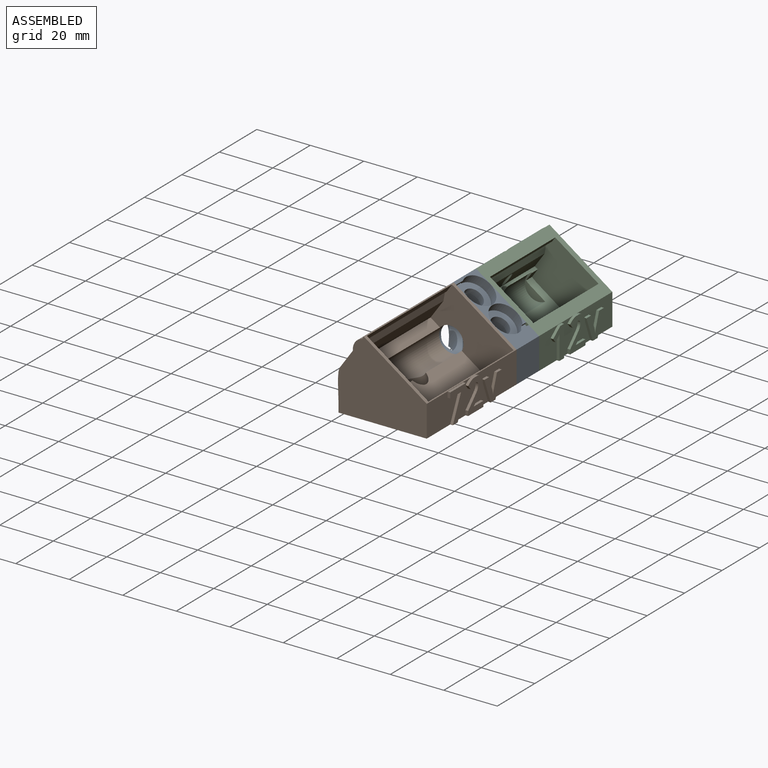
[diagram: assembled view]
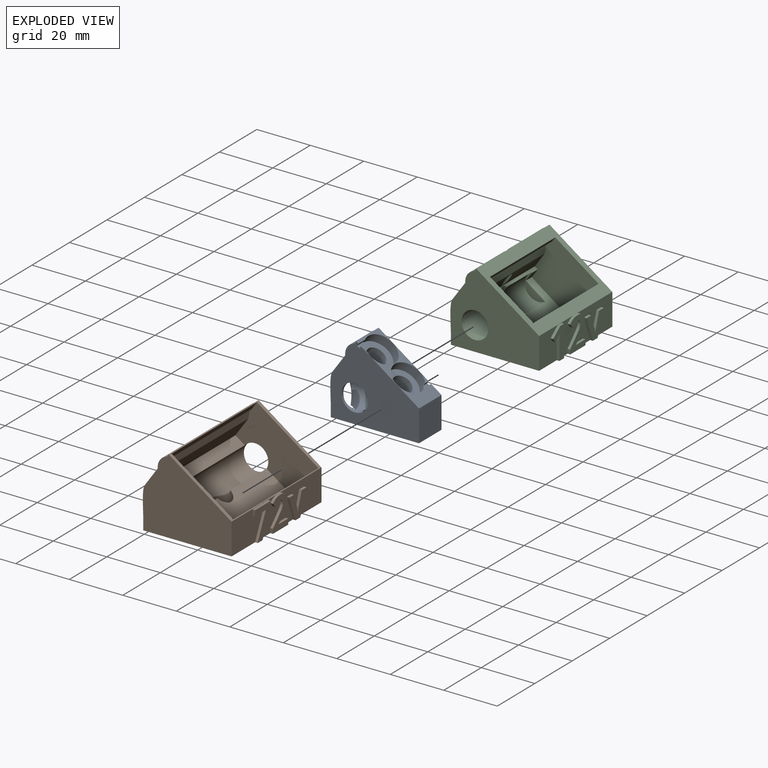
[diagram: exploded view]
GUIDED TOUR — MATED ASSEMBLY (Onshape document 5c7bf9b9e950bf42ef3f9977, AutoMate assembly 5c7bf9b9e950bf42ef3f9977_c45d6a06aa66dc18be972991_92470827dc34dc3ffc66e42c_default)

This assembly has 3 components, labeled P0..P2 below (a component is one placed occurrence of a part; the same part can appear more than once), held together by 2 mates. A mate is a constraint between two components; its type names the relative motion it leaves free:
  FASTENED — locks the two components together rigidly (no relative motion).
Axis/direction vectors are unit vectors and 'through' points are millimeter coordinates, both in the assembly's world frame.

MATES
  1. FASTENED "Fastened 2": P1 <-> P0, direction (0.000, 1.000, 0.000) through (-30.83, -8.54, 11.72) mm
  2. FASTENED "Fastened 1": P2 <-> P0, direction (0.000, -1.000, 0.000) through (-30.83, 3.46, 11.72) mm

ASSEMBLY ORDER
  1. P2 — the base component [order verified]
  2. P0 [order verified]
  3. P1 [order verified]
Order-tag legend:
  [order verified] — this step's position reverses a verified removal order: the component was checked to insert without passing through the ones already placed.

Of the 3 components, 2 carry the full construction recipe — the FeatureScript program that regenerates the part's solid from scratch; the rest are supplied as boundary geometry only.
Each toured component is shown spotlighted twice — in the assembled view, then in the exploded view, where a leader line traces a displaced component back to its assembled socket (saturated green if recipe-attached, orange if geometry-only; every other component desaturated gray) — followed by its recipe or geometry summary and the mates that hold it.
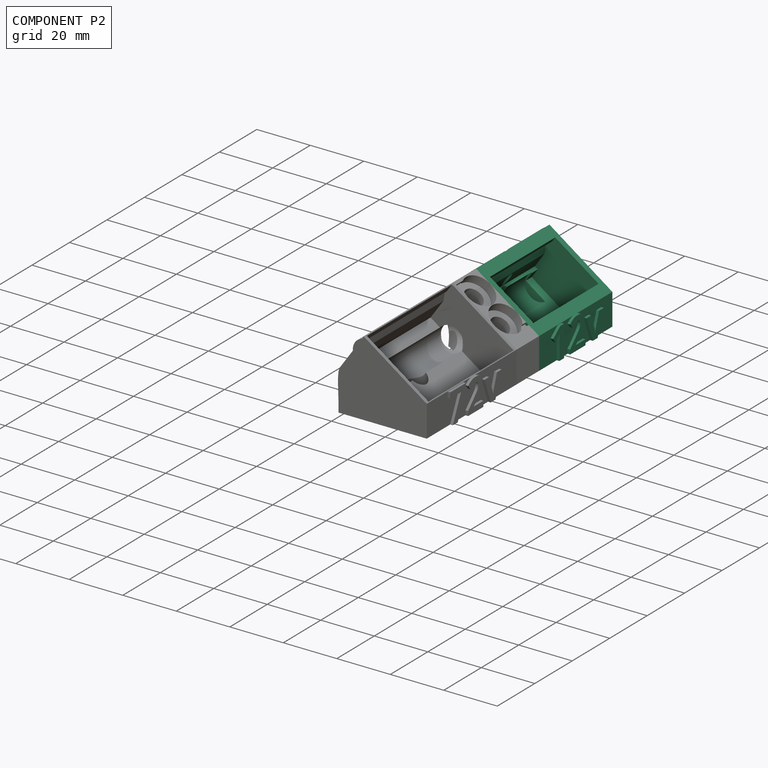
[diagram: component P2 — assembled]
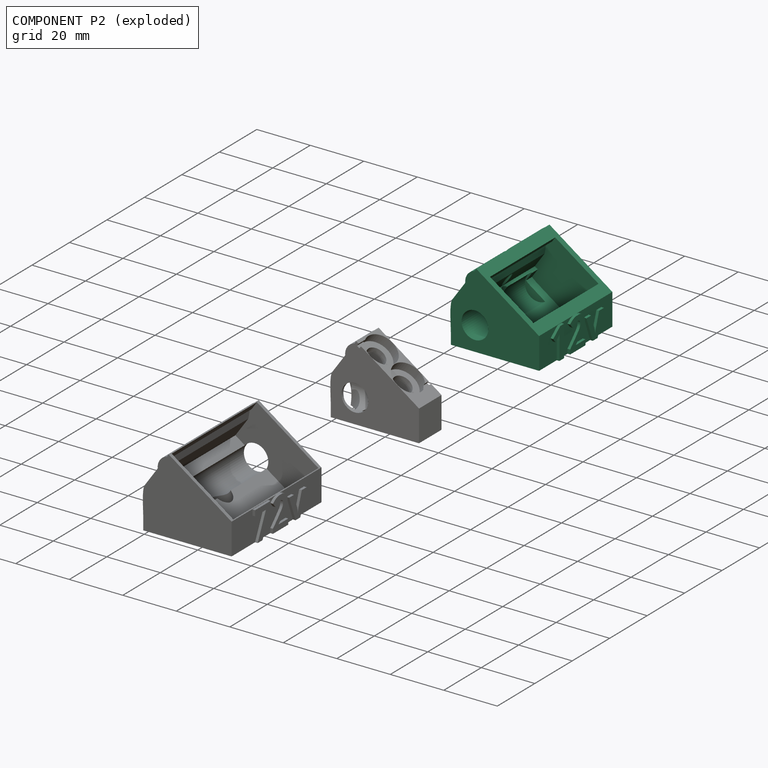
[diagram: component P2 — exploded]
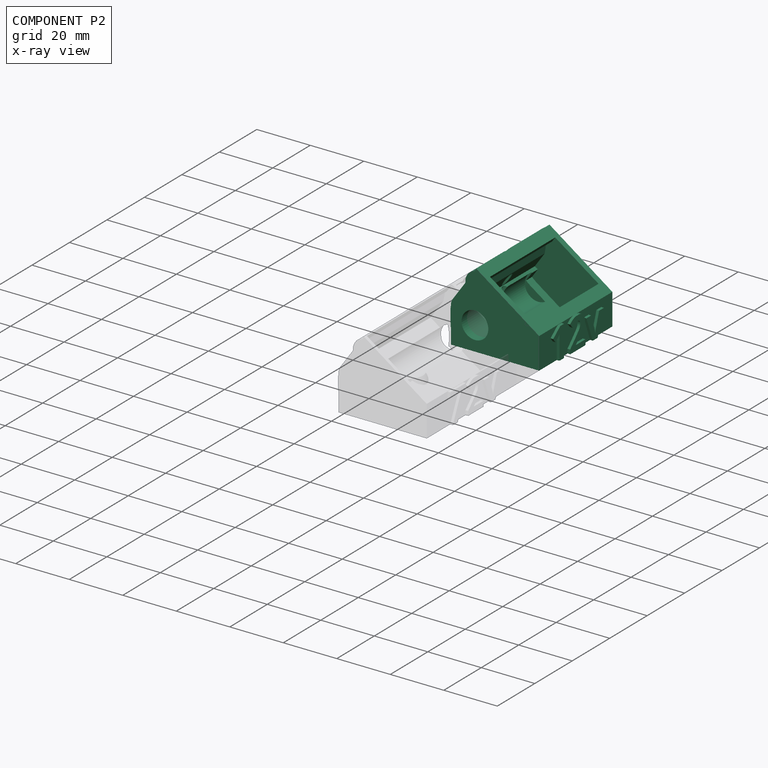
[diagram: component P2 — x-ray view]
COMPONENT P2 — recipe-attached (CADFS 00945284, mesh-verified: the recipe's output STEP matches this component's geometry to below the mesh-comparison resolution (tessellation chordal tolerance ~0.0886 mm)).
Held by: FASTENED mate "Fastened 1" to P0.
Construction recipe (FeatureScript — the CAD program that rebuilds this solid; sketch coordinates are in the units given by the * unit suffixes, e.g. mm):

FeatureScript 1511;
import(path : "onshape/std/geometry.fs", version : "1511.0");
import(path : "onshape/std/common.fs", version : "1511.0");
const mm = millimeter;
const VERTEX = EntityType.VERTEX;
const EDGE = EntityType.EDGE;
const FACE = EntityType.FACE;
const BODY = EntityType.BODY;
function v(x, y){return vector(x, y);}
function OD(order){return orderDisambiguation(order);}
function OSD(set){return originalSetDisambiguation(set);}
function TD(topology){return topologyDisambiguation(topology);}
function TDD(query){return trueDependencyDisambiguation(query);}
function sQuery(a, b, c) {return sketchEntityQuery(a, b, c);}

annotation { "Feature Type Name" : "Feature", "Feature Type Description" : "" }
export const myFeature = defineFeature(function(context is Context, id is Id, definition is map)
    precondition{}
    {
        {
            var Q0;
            Q0=qCreatedBy(makeId("Front.planeOp"),FACE);
            var sketch = newSketch(context, id + "F0", { "sketchPlane" : qUnion([Q0])});
            skLineSegment(sketch, "E0.bottom", {"start": v(0, 0) * mm, "end": v(-33, 0) * mm});
            skLineSegment(sketch, "E0.top", {"start": v(0, 4) * mm, "end": v(-33, 4) * mm});
            skLineSegment(sketch, "E0.left", {"start": v(0, 0) * mm, "end": v(0, 4) * mm});
            skLineSegment(sketch, "E0.right", {"start": v(-33, 0) * mm, "end": v(-33, 4) * mm});
            skLineSegment(sketch, "E1", {"start": v(-30.88, 15.06) * mm, "end": v(-9.83, 0.32) * mm, "construction": true});
            skLineSegment(sketch, "E2", {"start": v(-9.83, 0.32) * mm, "end": v(-1.23, 12.6) * mm, "construction": true});
            skLineSegment(sketch, "E3", {"start": v(-1.23, 12.6) * mm, "end": v(0, 11.74) * mm, "construction": true});
            skLineSegment(sketch, "E4", {"start": v(-22.28, 27.35) * mm, "end": v(-30.88, 15.06) * mm, "construction": true});
            skLineSegment(sketch, "E5", {"start": v(0, 4) * mm, "end": v(0, 11.74) * mm});
            skLineSegment(sketch, "E6", {"start": v(-32.4, 15.5) * mm, "end": v(-15.96, 4) * mm});
            skLineSegment(sketch, "E7", {"start": v(0, 7.87) * mm, "end": v(13.32, 7.87) * mm});
            skLineSegment(sketch, "E8", {"start": v(13.32, 7.87) * mm, "end": v(13.32, 0) * mm});
            skLineSegment(sketch, "E9", {"start": v(13.32, 0) * mm, "end": v(0, 0) * mm});
            skLineSegment(sketch, "E10", {"start": v(21.82, 30.5) * mm, "end": v(-34.66, 30.5) * mm, "construction": true});
            skLineSegment(sketch, "E11", {"start": v(-22.28, 27.35) * mm, "end": v(-23.5, 28.2) * mm, "construction": true});
            skLineSegment(sketch, "E12", {"start": v(-23.5, 28.2) * mm, "end": v(-21.9, 30.5) * mm, "construction": true});
            skLineSegment(sketch, "E13", {"start": v(-21.9, 30.5) * mm, "end": v(1.6, 14.04) * mm, "construction": true});
            skLineSegment(sketch, "E14", {"start": v(0, 11.74) * mm, "end": v(1.6, 14.04) * mm, "construction": true});
            skLineSegment(sketch, "E15", {"start": v(-29.2, 13.88) * mm, "end": v(-31.73, 10.28) * mm, "construction": true});
            skLineSegment(sketch, "E16", {"start": v(-31.73, 10.28) * mm, "end": v(-14.04, -2.11) * mm, "construction": true});
            skLineSegment(sketch, "E17", {"start": v(-14.04, -2.11) * mm, "end": v(-11.51, 1.5) * mm, "construction": true});
            skLineSegment(sketch, "E18", {"start": v(-22.88, 4.08) * mm, "end": v(-20.36, 7.69) * mm, "construction": true});
            skLineSegment(sketch, "E19", {"start": v(0, 11.74) * mm, "end": v(-23.5, 28.2) * mm});
            skLineSegment(sketch, "E20", {"start": v(-23.5, 28.2) * mm, "end": v(-32.4, 15.5) * mm});
            skLineSegment(sketch, "E21", {"start": v(-1.1, 12.52) * mm, "end": v(-9.87, 0) * mm});
            skLineSegment(sketch, "E22", {"start": v(-22.4, 27.43) * mm, "end": v(-31.3, 14.74) * mm});
            skFitSpline(sketch, "E23", {"points": [v(-32.4, 15.5) * mm, v(-33, 4) * mm], "startDerivative": vector(-3.84, -5.87) * mm, "endDerivative": vector(0, -11.95) * mm});
            skLineSegment(sketch, "E24", {"start": v(-15.96, 4) * mm, "end": v(-10.25, 0) * mm});
            skLineSegment(sketch, "E25", {"start": v(-23.03, 26.54) * mm, "end": v(-25.92, 24.77) * mm});
            skLineSegment(sketch, "E26", {"start": v(-25.92, 24.77) * mm, "end": v(-26.47, 21.62) * mm});
            skLineSegment(sketch, "E27.MirrorCS", {"start": v(-1.73, 11.62) * mm, "end": v(-2.4, 8.3) * mm});
            skLineSegment(sketch, "E28.MirrorCS", {"start": v(-2.4, 8.3) * mm, "end": v(-5.17, 6.7) * mm});
            skArc(sketch, "E29", {"start": v(-24.18, 27.25) * mm, "mid": v(-26.8, 25.44) * mm, "end": v(-27.6, 22.35) * mm});
            skLineSegment(sketch, "E30", {"start": v(-23.25, 28.02) * mm, "end": v(-25.23, 25.19) * mm});
            skLineSegment(sketch, "E31.MirrorCS", {"start": v(-0.26, 11.93) * mm, "end": v(-2.25, 9.1) * mm});
            skLineSegment(sketch, "E32", {"start": v(-19.45, 25.37) * mm, "end": v(-27.48, 13.9) * mm});
            skLineSegment(sketch, "E33", {"start": v(-19.85, 25.64) * mm, "end": v(-21, 24) * mm});
            skLineSegment(sketch, "E34", {"start": v(-21, 24) * mm, "end": v(-23.26, 22.54) * mm});
            skLineSegment(sketch, "E35", {"start": v(-23.26, 22.54) * mm, "end": v(-23.77, 19.2) * mm});
            skLineSegment(sketch, "E36", {"start": v(-23.26, 22.54) * mm, "end": v(-22.04, 21.68) * mm});
            skLineSegment(sketch, "E37.MirrorCS", {"start": v(-4.05, 14.58) * mm, "end": v(-12.08, 3.12) * mm});
            skLineSegment(sketch, "E38.MirrorCS", {"start": v(-5.4, 10.04) * mm, "end": v(-8.37, 8.42) * mm});
            skLineSegment(sketch, "E39.MirrorCS", {"start": v(-4.8, 12.67) * mm, "end": v(-5.4, 10.04) * mm});
            skLineSegment(sketch, "E40.MirrorCS", {"start": v(-3.66, 14.3) * mm, "end": v(-4.8, 12.67) * mm});
            skLineSegment(sketch, "E41", {"start": v(-27.48, 13.9) * mm, "end": v(-12.08, 3.12) * mm});
            skLineSegment(sketch, "E42", {"start": v(-26.93, 8.63) * mm, "end": v(-18.27, 2.57) * mm});
            skLineSegment(sketch, "E43", {"start": v(-18.27, 2.57) * mm, "end": v(-15.95, 0.94) * mm});
            skLineSegment(sketch, "E44", {"start": v(-15.95, 0.94) * mm, "end": v(-13.66, 4.22) * mm});
            skLineSegment(sketch, "E45", {"start": v(-26.36, 13.11) * mm, "end": v(-28.56, 9.97) * mm});
            skLineSegment(sketch, "E46", {"start": v(-28.56, 9.97) * mm, "end": v(-26.93, 8.63) * mm});
            skSolve(sketch);
        }
        {
            var Q0;
            {var subQ6=sQuery(id+"F0.wireOp",EDGE,"E33");Q0=makeQuery(id+"F0.imprint","IMPRINT",FACE,{"disambiguationData":[TD([[makeQuery(id+"F0.imprint","IMPRINT",EDGE,{"derivedFrom":subQ6}),-1.0]])]});}
            var Q1;
            {var subQ3=sQuery(id+"F0.wireOp",EDGE,"E37.MirrorCS");var subQ4=sQuery(id+"F0.wireOp",EDGE,"E0.top");var subQ5=makeQuery(id+"F0.imprint","INTERSECT",VERTEX,{"derivedFrom":[subQ4,subQ3]});Q1=makeQuery(id+"F0.imprint","IMPRINT",FACE,{"disambiguationData":[TD([[makeQuery(id+"F0.imprint","IMPRINT",EDGE,{"disambiguationData":[TD([[subQ5,-1.0]])],"derivedFrom":subQ4}),-1.0]])]});}
            var Q2;
            {var subQ0=sQuery(id+"F0.wireOp",EDGE,"E38.MirrorCS");Q2=makeQuery(id+"F0.imprint","IMPRINT",FACE,{"disambiguationData":[TD([[makeQuery(id+"F0.imprint","IMPRINT",EDGE,{"derivedFrom":subQ0}),-1.0]])]});}
            var Q3;
            {var subQ10=sQuery(id+"F0.wireOp",EDGE,"E38.MirrorCS");Q3=makeQuery(id+"F0.imprint","IMPRINT",FACE,{"disambiguationData":[TD([[makeQuery(id+"F0.imprint","IMPRINT",EDGE,{"derivedFrom":subQ10}),1.0]])]});}
            var Q4;
            {var subQ7=sQuery(id+"F0.wireOp",EDGE,"E24");Q4=makeQuery(id+"F0.imprint","IMPRINT",FACE,{"disambiguationData":[TD([[makeQuery(id+"F0.imprint","IMPRINT",EDGE,{"derivedFrom":subQ7}),1.0]])]});}
            var Q5;
            {var subQ0=sQuery(id+"F0.wireOp",EDGE,"E37.MirrorCS");var subQ1=sQuery(id+"F0.wireOp",EDGE,"E0.top");var subQ2=makeQuery(id+"F0.imprint","INTERSECT",VERTEX,{"derivedFrom":[subQ1,subQ0]});Q5=makeQuery(id+"F0.imprint","IMPRINT",FACE,{"disambiguationData":[TD([[makeQuery(id+"F0.imprint","IMPRINT",EDGE,{"disambiguationData":[TD([[subQ2,-1.0]])],"derivedFrom":subQ1}),1.0]])]});}
            var Q6;
            {var subQ5=sQuery(id+"F0.wireOp",EDGE,"E28.MirrorCS");Q6=makeQuery(id+"F0.imprint","IMPRINT",FACE,{"disambiguationData":[TD([[makeQuery(id+"F0.imprint","IMPRINT",EDGE,{"derivedFrom":subQ5}),1.0]])]});}
            var Q7;
            {var subQ3=sQuery(id+"F0.wireOp",EDGE,"E28.MirrorCS");Q7=makeQuery(id+"F0.imprint","IMPRINT",FACE,{"disambiguationData":[TD([[makeQuery(id+"F0.imprint","IMPRINT",EDGE,{"derivedFrom":subQ3}),-1.0]])]});}
            var Q8;
            {var subQ3=sQuery(id+"F0.wireOp",EDGE,"E31.MirrorCS");Q8=makeQuery(id+"F0.imprint","IMPRINT",FACE,{"disambiguationData":[TD([[makeQuery(id+"F0.imprint","IMPRINT",EDGE,{"derivedFrom":subQ3}),-1.0]])]});}
            var Q9;
            {var subQ0=sQuery(id+"F0.wireOp",EDGE,"E0.left");Q9=makeQuery(id+"F0.imprint","IMPRINT",FACE,{"disambiguationData":[TD([[makeQuery(id+"F0.imprint","IMPRINT",EDGE,{"derivedFrom":subQ0}),1.0]])]});}
            var Q10;
            {var subQ0=sQuery(id+"F0.wireOp",EDGE,"E0.right");Q10=makeQuery(id+"F0.imprint","IMPRINT",FACE,{"disambiguationData":[TD([[makeQuery(id+"F0.imprint","IMPRINT",EDGE,{"derivedFrom":subQ0}),-1.0]])]});}
            var Q11;
            {var subQ0=sQuery(id+"F0.wireOp",EDGE,"E23");Q11=makeQuery(id+"F0.imprint","IMPRINT",FACE,{"disambiguationData":[TD([[makeQuery(id+"F0.imprint","IMPRINT",EDGE,{"derivedFrom":subQ0}),1.0]])]});}
            var Q12;
            {var subQ3=sQuery(id+"F0.wireOp",EDGE,"E26");Q12=makeQuery(id+"F0.imprint","IMPRINT",FACE,{"disambiguationData":[TD([[makeQuery(id+"F0.imprint","IMPRINT",EDGE,{"derivedFrom":subQ3}),-1.0]])]});}
            var Q13;
            {var subQ0=sQuery(id+"F0.wireOp",EDGE,"E35");Q13=makeQuery(id+"F0.imprint","IMPRINT",FACE,{"disambiguationData":[TD([[makeQuery(id+"F0.imprint","IMPRINT",EDGE,{"derivedFrom":subQ0}),1.0]])]});}
            var Q14;
            {var subQ0=sQuery(id+"F0.wireOp",EDGE,"E33");Q14=makeQuery(id+"F0.imprint","IMPRINT",FACE,{"disambiguationData":[TD([[makeQuery(id+"F0.imprint","IMPRINT",EDGE,{"derivedFrom":subQ0}),1.0]])]});}
            var Q15;
            {var subQ3=sQuery(id+"F0.wireOp",EDGE,"E26");Q15=makeQuery(id+"F0.imprint","IMPRINT",FACE,{"disambiguationData":[TD([[makeQuery(id+"F0.imprint","IMPRINT",EDGE,{"derivedFrom":subQ3}),1.0]])]});}
            var Q16;
            {var subQ3=sQuery(id+"F0.wireOp",EDGE,"E30");Q16=makeQuery(id+"F0.imprint","IMPRINT",FACE,{"disambiguationData":[TD([[makeQuery(id+"F0.imprint","IMPRINT",EDGE,{"derivedFrom":subQ3}),1.0]])]});}
            var Q17;
            {var subQ6=sQuery(id+"F0.wireOp",EDGE,"E30");Q17=makeQuery(id+"F0.imprint","IMPRINT",FACE,{"disambiguationData":[TD([[makeQuery(id+"F0.imprint","IMPRINT",EDGE,{"derivedFrom":subQ6}),-1.0]])]});}
            var Q18;
            {var subQ0=sQuery(id+"F0.wireOp",EDGE,"E44");var subQ1=sQuery(id+"F0.wireOp",EDGE,"E41");var subQ2=makeQuery(id+"F0.imprint","INTERSECT",VERTEX,{"derivedFrom":[subQ1,subQ0]});Q18=makeQuery(id+"F0.imprint","IMPRINT",FACE,{"disambiguationData":[TD([[makeQuery(id+"F0.imprint","IMPRINT",EDGE,{"disambiguationData":[TD([[subQ2,1.0]])],"derivedFrom":subQ1}),-1.0]])]});}
            var Q19;
            {var subQ0=sQuery(id+"F0.wireOp",EDGE,"E46");Q19=makeQuery(id+"F0.imprint","IMPRINT",FACE,{"disambiguationData":[TD([[makeQuery(id+"F0.imprint","IMPRINT",EDGE,{"derivedFrom":subQ0}),1.0]])]});}
            var Q20;
            {var subQ0=sQuery(id+"F0.wireOp",EDGE,"E21");var subQ5=sQuery(id+"F0.wireOp",EDGE,"E0.bottom");var subQ6=makeQuery(id+"F0.imprint","INTERSECT",VERTEX,{"derivedFrom":[subQ5,subQ0]});Q20=makeQuery(id+"F0.imprint","IMPRINT",FACE,{"disambiguationData":[TD([[makeQuery(id+"F0.imprint","IMPRINT",EDGE,{"disambiguationData":[TD([[subQ6,-1.0]])],"derivedFrom":subQ5}),-1.0]])]});}
            var Q21;
            {var subQ0=sQuery(id+"F0.wireOp",EDGE,"E41");var subQ1=sQuery(id+"F0.wireOp",EDGE,"E0.top");var subQ2=makeQuery(id+"F0.imprint","INTERSECT",VERTEX,{"derivedFrom":[subQ1,subQ0]});Q21=makeQuery(id+"F0.imprint","IMPRINT",FACE,{"disambiguationData":[TD([[makeQuery(id+"F0.imprint","IMPRINT",EDGE,{"disambiguationData":[TD([[subQ2,-1.0]])],"derivedFrom":subQ1}),-1.0]])]});}
            var Q22;
            {var subQ0=sQuery(id+"F0.wireOp",EDGE,"E43");Q22=makeQuery(id+"F0.imprint","IMPRINT",FACE,{"disambiguationData":[TD([[makeQuery(id+"F0.imprint","IMPRINT",EDGE,{"derivedFrom":subQ0}),1.0]])]});}
            var Q23;
            {var subQ2=sQuery(id+"F0.wireOp",EDGE,"E29");Q23=makeQuery(id+"F0.imprint","IMPRINT",FACE,{"disambiguationData":[TD([[makeQuery(id+"F0.imprint","IMPRINT",EDGE,{"derivedFrom":subQ2}),1.0]])]});}
            extrude(context, id + "F1", {"entities" : qUnion([Q0, Q1, Q2, Q3, Q4, Q5, Q6, Q7, Q8, Q9, Q10, Q11, Q12, Q13, Q14, Q15, Q16, Q17, Q18, Q19, Q20, Q21, Q22, Q23]), "endBound" : BoundingType.SYMMETRIC, "depth" : 39.1 * mm, "offsetDistance" : 25 * mm});
        }
        {
            var Q0;
            {var subQ0=sQuery(id+"F0.wireOp",EDGE,"E35");Q0=makeQuery(id+"F0.imprint","IMPRINT",FACE,{"disambiguationData":[TD([[makeQuery(id+"F0.imprint","IMPRINT",EDGE,{"derivedFrom":subQ0}),1.0]])]});}
            var Q1;
            {var subQ0=sQuery(id+"F0.wireOp",EDGE,"E33");Q1=makeQuery(id+"F0.imprint","IMPRINT",FACE,{"disambiguationData":[TD([[makeQuery(id+"F0.imprint","IMPRINT",EDGE,{"derivedFrom":subQ0}),1.0]])]});}
            var Q2;
            {var subQ3=sQuery(id+"F0.wireOp",EDGE,"E37.MirrorCS");var subQ4=sQuery(id+"F0.wireOp",EDGE,"E0.top");var subQ5=makeQuery(id+"F0.imprint","INTERSECT",VERTEX,{"derivedFrom":[subQ4,subQ3]});Q2=makeQuery(id+"F0.imprint","IMPRINT",FACE,{"disambiguationData":[TD([[makeQuery(id+"F0.imprint","IMPRINT",EDGE,{"disambiguationData":[TD([[subQ5,-1.0]])],"derivedFrom":subQ4}),-1.0]])]});}
            var Q3;
            {var subQ0=sQuery(id+"F0.wireOp",EDGE,"E38.MirrorCS");Q3=makeQuery(id+"F0.imprint","IMPRINT",FACE,{"disambiguationData":[TD([[makeQuery(id+"F0.imprint","IMPRINT",EDGE,{"derivedFrom":subQ0}),-1.0]])]});}
            var Q4;
            {var subQ0=sQuery(id+"F0.wireOp",EDGE,"E37.MirrorCS");var subQ1=sQuery(id+"F0.wireOp",EDGE,"E0.top");var subQ2=makeQuery(id+"F0.imprint","INTERSECT",VERTEX,{"derivedFrom":[subQ1,subQ0]});Q4=makeQuery(id+"F0.imprint","IMPRINT",FACE,{"disambiguationData":[TD([[makeQuery(id+"F0.imprint","IMPRINT",EDGE,{"disambiguationData":[TD([[subQ2,-1.0]])],"derivedFrom":subQ1}),1.0]])]});}
            var Q5;
            {var subQ0=sQuery(id+"F0.wireOp",EDGE,"E46");Q5=makeQuery(id+"F0.imprint","IMPRINT",FACE,{"disambiguationData":[TD([[makeQuery(id+"F0.imprint","IMPRINT",EDGE,{"derivedFrom":subQ0}),1.0]])]});}
            var Q6;
            {var subQ0=sQuery(id+"F0.wireOp",EDGE,"E44");var subQ1=sQuery(id+"F0.wireOp",EDGE,"E41");var subQ2=makeQuery(id+"F0.imprint","INTERSECT",VERTEX,{"derivedFrom":[subQ1,subQ0]});Q6=makeQuery(id+"F0.imprint","IMPRINT",FACE,{"disambiguationData":[TD([[makeQuery(id+"F0.imprint","IMPRINT",EDGE,{"disambiguationData":[TD([[subQ2,1.0]])],"derivedFrom":subQ1}),-1.0]])]});}
            var Q7;
            {var subQ0=sQuery(id+"F0.wireOp",EDGE,"E43");Q7=makeQuery(id+"F0.imprint","IMPRINT",FACE,{"disambiguationData":[TD([[makeQuery(id+"F0.imprint","IMPRINT",EDGE,{"derivedFrom":subQ0}),1.0]])]});}
            var Q8;
            {var subQ1=sQuery(id+"F0.wireOp",EDGE,"E0.top");var subQ3=sQuery(id+"F0.wireOp",EDGE,"E44");var subQ4=makeQuery(id+"F0.imprint","INTERSECT",VERTEX,{"derivedFrom":[subQ1,subQ3]});Q8=makeQuery(id+"F0.imprint","IMPRINT",FACE,{"disambiguationData":[TD([[makeQuery(id+"F0.imprint","IMPRINT",EDGE,{"disambiguationData":[TD([[subQ4,1.0]])],"derivedFrom":subQ3}),1.0]])]});}
            extrude(context, id + "F2", {"entities" : qUnion([Q0, Q1, Q2, Q3, Q4, Q5, Q6, Q7, Q8]), "operationType" : NewBodyOperationType.REMOVE, "endBound" : BoundingType.SYMMETRIC, "oppositeDirection" : true, "depth" : 34.8 * mm, "offsetDistance" : 25 * mm});
        }
        {
            var Q0;
            Q0=makeQuery(id+"F1.opExtrude","CAP_FACE",FACE,{"disambiguationData":[OSD([sQuery(id+"F0.wireOp",EDGE,"E0.bottom"),sQuery(id+"F0.wireOp",EDGE,"E0.left"),sQuery(id+"F0.wireOp",EDGE,"E0.right"),sQuery(id+"F0.wireOp",EDGE,"E5"),sQuery(id+"F0.wireOp",EDGE,"E19"),sQuery(id+"F0.wireOp",EDGE,"E20"),sQuery(id+"F0.wireOp",EDGE,"E23"),sQuery(id+"F0.wireOp",EDGE,"E29")])],"isStart":false});
            var sketch = newSketch(context, id + "F3", { "sketchPlane" : qUnion([Q0])});
            skCircle(sketch, "E47", {"center": v(-24, 9) * mm, "radius": 5 * mm});
            skSolve(sketch);
        }
        {
            var Q0;
            Q0=makeQuery(id+"F3.imprint","IMPRINT",FACE,{"disambiguationData":[TD([[makeQuery(id+"F3.imprint","IMPRINT",EDGE,{"derivedFrom":sQuery(id+"F3.wireOp",EDGE,"E47")}),1.0]])]});
            extrude(context, id + "F4", {"entities" : qUnion([Q0]), "operationType" : NewBodyOperationType.REMOVE, "oppositeDirection" : true, "depth" : 33.8 * mm, "offsetDistance" : 25 * mm});
        }
        {
            var Q0;
            Q0=qCreatedBy(makeId("Top.planeOp"),FACE);
            var sketch = newSketch(context, id + "F5", { "sketchPlane" : qUnion([Q0])});
            skCircle(sketch, "E48", {"center": v(-25.7, 0) * mm, "radius": 1.65 * mm});
            skCircle(sketch, "E49", {"center": v(-25.7, 0) * mm, "radius": 4 * mm});
            skSolve(sketch);
        }
        {
            var Q0;
            Q0=makeQuery(id+"F5.imprint","IMPRINT",FACE,{"disambiguationData":[TD([[makeQuery(id+"F5.imprint","IMPRINT",EDGE,{"derivedFrom":sQuery(id+"F5.wireOp",EDGE,"E48")}),1.0]])]});
            extrude(context, id + "F6", {"entities" : qUnion([Q0]), "operationType" : NewBodyOperationType.REMOVE, "depth" : 28.3 * mm, "offsetDistance" : 25 * mm});
        }
        {
            var Q0;
            Q0=makeQuery(id+"F5.imprint","IMPRINT",FACE,{"disambiguationData":[TD([[makeQuery(id+"F5.imprint","IMPRINT",EDGE,{"derivedFrom":sQuery(id+"F5.wireOp",EDGE,"E48")}),-1.0]])]});
            extrude(context, id + "F7", {"entities" : qUnion([Q0]), "operationType" : NewBodyOperationType.REMOVE, "depth" : 13.3 * mm, "offsetDistance" : 25 * mm, "hasSecondDirection" : true, "secondDirectionOppositeDirection" : false, "secondDirectionDepth" : 2 * mm});
        }
        {
            var Q0;
            Q0=makeQuery(id+"F1.opExtrude","SWEPT_FACE",FACE,{"disambiguationData":[OSD([sQuery(id+"F0.wireOp",EDGE,"E0.left"),sQuery(id+"F0.wireOp",EDGE,"E5")])]});
            var sketch = newSketch(context, id + "F8", { "sketchPlane" : qUnion([Q0])});
            skText(sketch, "E50", { "text": "12v", "fontName": "OpenSans-Bold.ttf"});
            const initialGuessF8  = {"E50": [-0.01443, -6e-05, 1, 0, 0.0118]};
            skSetInitialGuess(sketch, initialGuessF8);
            skSolve(sketch);
        }
        {
            var Q0;
            {var subQ0=sQuery(id+"F8.wireOp",EDGE,"E50.sketch_text.stroke-2");Q0=makeQuery(id+"F8.imprint","IMPRINT",FACE,{"disambiguationData":[TD([[makeQuery(id+"F8.imprint","IMPRINT",EDGE,{"derivedFrom":subQ0}),-1.0]])]});}
            var Q1;
            {var subQ7=sQuery(id+"F8.wireOp",EDGE,"E50.sketch_text.stroke-12");Q1=makeQuery(id+"F8.imprint","IMPRINT",FACE,{"disambiguationData":[TD([[makeQuery(id+"F8.imprint","IMPRINT",EDGE,{"derivedFrom":subQ7}),-1.0]])]});}
            var Q2;
            {var subQ0=sQuery(id+"F8.wireOp",EDGE,"E50.sketch_text.stroke-35");Q2=makeQuery(id+"F8.imprint","IMPRINT",FACE,{"disambiguationData":[TD([[makeQuery(id+"F8.imprint","IMPRINT",EDGE,{"derivedFrom":subQ0}),-1.0]])]});}
            extrude(context, id + "F9", {"entities" : qUnion([Q0, Q1, Q2]), "operationType" : NewBodyOperationType.ADD, "depth" : 1 * mm, "offsetDistance" : 25 * mm});
        }
    });
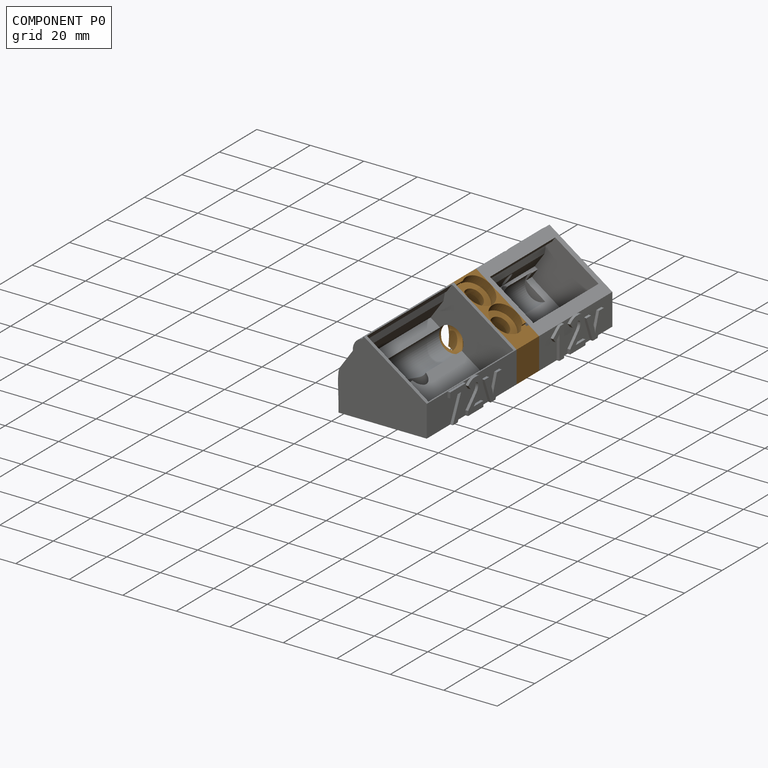
[diagram: component P0 — assembled]
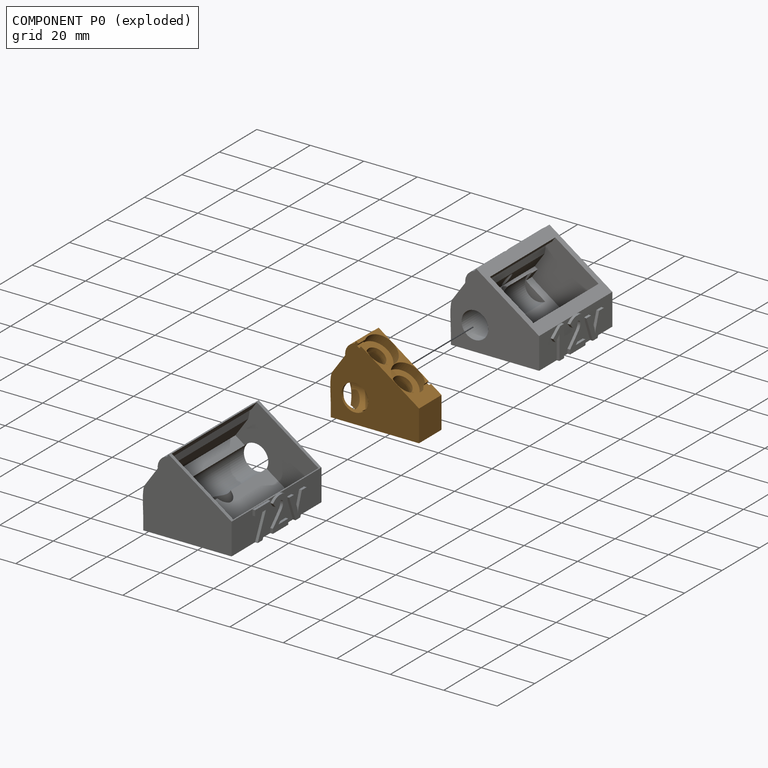
[diagram: component P0 — exploded]
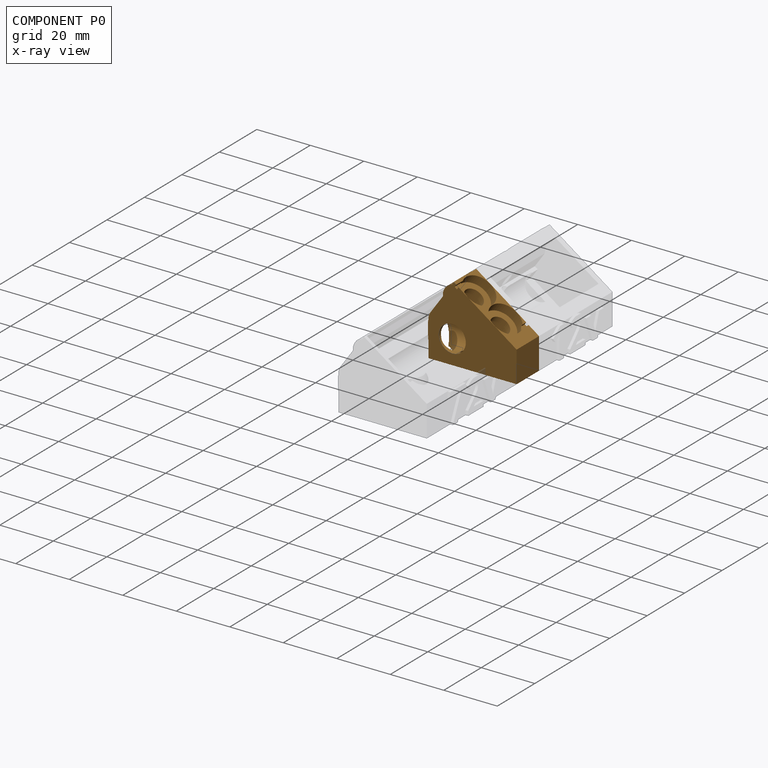
[diagram: component P0 — x-ray view]
COMPONENT P0 — geometry summary (no construction recipe available for this part):
  bounding box: 38.7 x 34.0 x 12.1 mm
  B-rep topology: 1 solid, 33 faces, 198 edges
  volume: 3729 mm^3 (23% of its bounding box)
Held by: FASTENED mate "Fastened 2" to P1; FASTENED mate "Fastened 1" to P2.
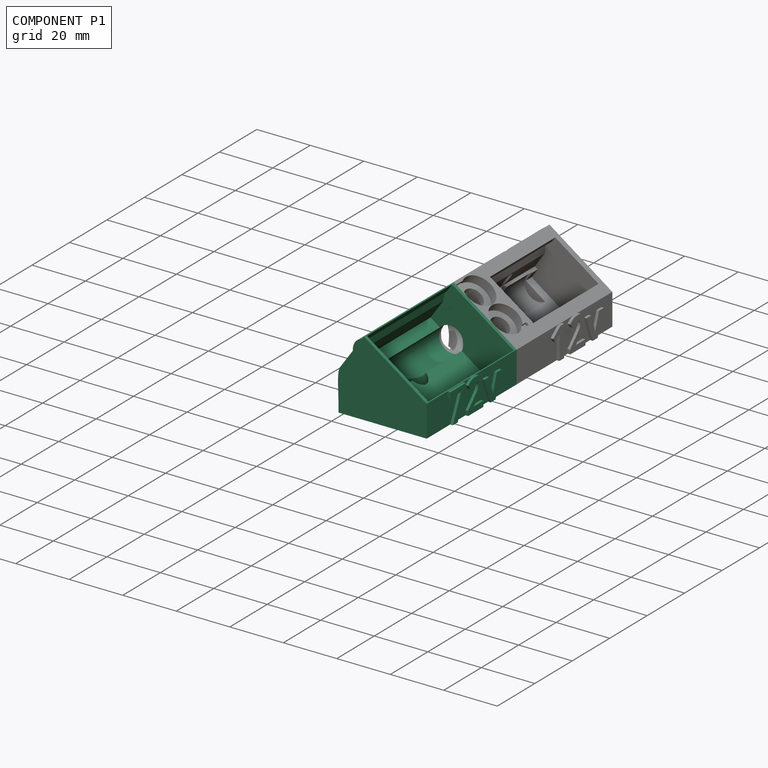
[diagram: component P1 — assembled]
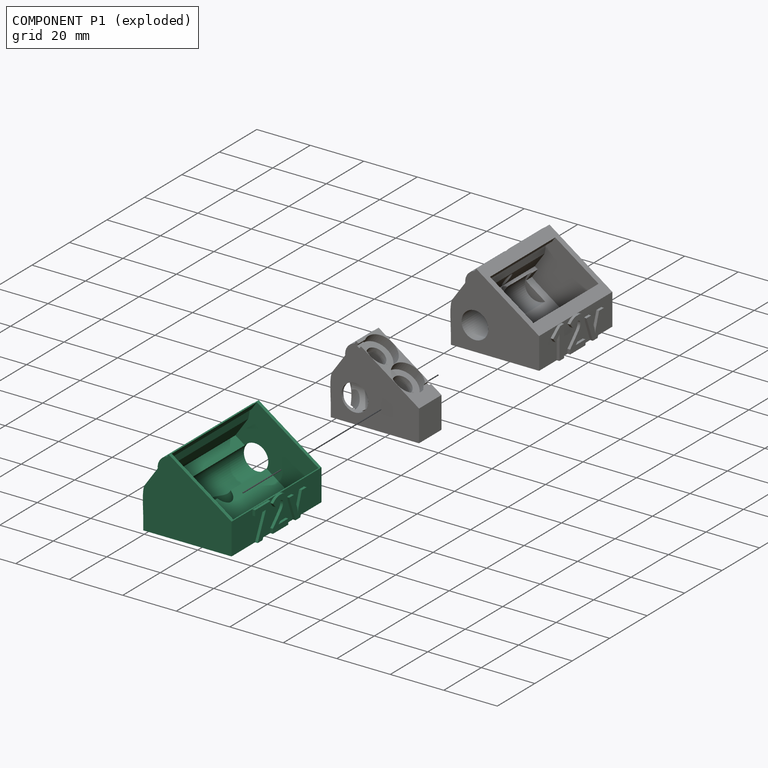
[diagram: component P1 — exploded]
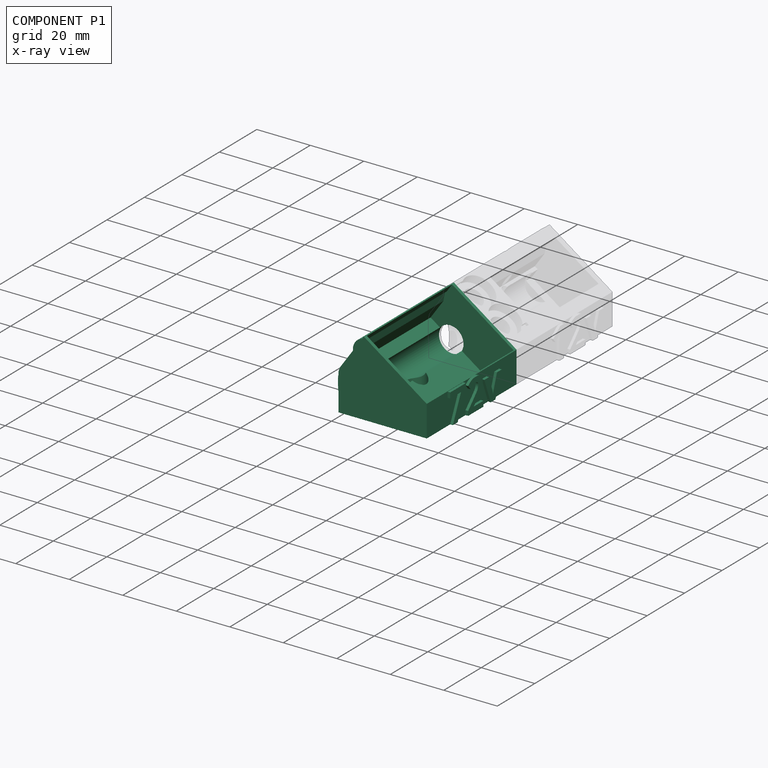
[diagram: component P1 — x-ray view]
COMPONENT P1 — recipe-attached (CADFS 00945283, mesh-verified: the recipe's output STEP matches this component's geometry to below the mesh-comparison resolution (tessellation chordal tolerance ~0.098 mm)).
Held by: FASTENED mate "Fastened 2" to P0.
Construction recipe (FeatureScript — the CAD program that rebuilds this solid; sketch coordinates are in the units given by the * unit suffixes, e.g. mm):

FeatureScript 1511;
import(path : "onshape/std/geometry.fs", version : "1511.0");
import(path : "onshape/std/common.fs", version : "1511.0");
const mm = millimeter;
const VERTEX = EntityType.VERTEX;
const EDGE = EntityType.EDGE;
const FACE = EntityType.FACE;
const BODY = EntityType.BODY;
function v(x, y){return vector(x, y);}
function OD(order){return orderDisambiguation(order);}
function OSD(set){return originalSetDisambiguation(set);}
function TD(topology){return topologyDisambiguation(topology);}
function TDD(query){return trueDependencyDisambiguation(query);}
function sQuery(a, b, c) {return sketchEntityQuery(a, b, c);}

annotation { "Feature Type Name" : "Feature", "Feature Type Description" : "" }
export const myFeature = defineFeature(function(context is Context, id is Id, definition is map)
    precondition{}
    {
        {
            var Q0;
            Q0=qCreatedBy(makeId("Front.planeOp"),FACE);
            var sketch = newSketch(context, id + "F0", { "sketchPlane" : qUnion([Q0])});
            skLineSegment(sketch, "E0.bottom", {"start": v(0, 0) * mm, "end": v(-33, 0) * mm});
            skLineSegment(sketch, "E0.top", {"start": v(0, 4) * mm, "end": v(-33, 4) * mm});
            skLineSegment(sketch, "E0.left", {"start": v(0, 0) * mm, "end": v(0, 4) * mm});
            skLineSegment(sketch, "E0.right", {"start": v(-33, 0) * mm, "end": v(-33, 4) * mm});
            skLineSegment(sketch, "E1", {"start": v(-30.88, 15.06) * mm, "end": v(-9.83, 0.32) * mm, "construction": true});
            skLineSegment(sketch, "E2", {"start": v(-9.83, 0.32) * mm, "end": v(-1.23, 12.6) * mm, "construction": true});
            skLineSegment(sketch, "E3", {"start": v(-1.23, 12.6) * mm, "end": v(0, 11.74) * mm, "construction": true});
            skLineSegment(sketch, "E4", {"start": v(-22.28, 27.35) * mm, "end": v(-30.88, 15.06) * mm, "construction": true});
            skLineSegment(sketch, "E5", {"start": v(0, 4) * mm, "end": v(0, 11.74) * mm});
            skLineSegment(sketch, "E6", {"start": v(-32.4, 15.5) * mm, "end": v(-15.96, 4) * mm});
            skLineSegment(sketch, "E7", {"start": v(0, 7.87) * mm, "end": v(13.32, 7.87) * mm});
            skLineSegment(sketch, "E8", {"start": v(13.32, 7.87) * mm, "end": v(13.32, 0) * mm});
            skLineSegment(sketch, "E9", {"start": v(13.32, 0) * mm, "end": v(0, 0) * mm});
            skLineSegment(sketch, "E10", {"start": v(21.82, 30.5) * mm, "end": v(-34.66, 30.5) * mm, "construction": true});
            skLineSegment(sketch, "E11", {"start": v(-22.28, 27.35) * mm, "end": v(-23.5, 28.2) * mm, "construction": true});
            skLineSegment(sketch, "E12", {"start": v(-23.5, 28.2) * mm, "end": v(-21.9, 30.5) * mm, "construction": true});
            skLineSegment(sketch, "E13", {"start": v(-21.9, 30.5) * mm, "end": v(1.6, 14.04) * mm, "construction": true});
            skLineSegment(sketch, "E14", {"start": v(0, 11.74) * mm, "end": v(1.6, 14.04) * mm, "construction": true});
            skLineSegment(sketch, "E15", {"start": v(-29.2, 13.88) * mm, "end": v(-31.73, 10.28) * mm, "construction": true});
            skLineSegment(sketch, "E16", {"start": v(-31.73, 10.28) * mm, "end": v(-14.04, -2.11) * mm, "construction": true});
            skLineSegment(sketch, "E17", {"start": v(-14.04, -2.11) * mm, "end": v(-11.51, 1.5) * mm, "construction": true});
            skLineSegment(sketch, "E18", {"start": v(-22.88, 4.08) * mm, "end": v(-20.36, 7.69) * mm, "construction": true});
            skLineSegment(sketch, "E19", {"start": v(0, 11.74) * mm, "end": v(-23.5, 28.2) * mm});
            skLineSegment(sketch, "E20", {"start": v(-23.5, 28.2) * mm, "end": v(-32.4, 15.5) * mm});
            skLineSegment(sketch, "E21", {"start": v(-1.1, 12.52) * mm, "end": v(-9.87, 0) * mm});
            skLineSegment(sketch, "E22", {"start": v(-22.4, 27.43) * mm, "end": v(-31.3, 14.74) * mm});
            skFitSpline(sketch, "E23", {"points": [v(-32.4, 15.5) * mm, v(-33, 4) * mm], "startDerivative": vector(-3.84, -5.87) * mm, "endDerivative": vector(0, -11.95) * mm});
            skLineSegment(sketch, "E24", {"start": v(-15.96, 4) * mm, "end": v(-10.25, 0) * mm});
            skLineSegment(sketch, "E25", {"start": v(-23.03, 26.54) * mm, "end": v(-25.92, 24.77) * mm});
            skLineSegment(sketch, "E26", {"start": v(-25.92, 24.77) * mm, "end": v(-26.47, 21.62) * mm});
            skLineSegment(sketch, "E27.MirrorCS", {"start": v(-1.73, 11.62) * mm, "end": v(-2.4, 8.3) * mm});
            skLineSegment(sketch, "E28.MirrorCS", {"start": v(-2.4, 8.3) * mm, "end": v(-5.17, 6.7) * mm});
            skArc(sketch, "E29", {"start": v(-24.18, 27.25) * mm, "mid": v(-26.8, 25.44) * mm, "end": v(-27.6, 22.35) * mm});
            skLineSegment(sketch, "E30", {"start": v(-23.25, 28.02) * mm, "end": v(-25.23, 25.19) * mm});
            skLineSegment(sketch, "E31.MirrorCS", {"start": v(-0.26, 11.93) * mm, "end": v(-2.25, 9.1) * mm});
            skSolve(sketch);
        }
        {
            var Q0;
            {var subQ0=sQuery(id+"F0.wireOp",EDGE,"E29");Q0=makeQuery(id+"F0.imprint","IMPRINT",FACE,{"disambiguationData":[TD([[makeQuery(id+"F0.imprint","IMPRINT",EDGE,{"derivedFrom":subQ0}),1.0]])]});}
            var Q1;
            {var subQ0=sQuery(id+"F0.wireOp",EDGE,"E23");Q1=makeQuery(id+"F0.imprint","IMPRINT",FACE,{"disambiguationData":[TD([[makeQuery(id+"F0.imprint","IMPRINT",EDGE,{"derivedFrom":subQ0}),1.0]])]});}
            var Q2;
            {var subQ0=sQuery(id+"F0.wireOp",EDGE,"E0.right");Q2=makeQuery(id+"F0.imprint","IMPRINT",FACE,{"disambiguationData":[TD([[makeQuery(id+"F0.imprint","IMPRINT",EDGE,{"derivedFrom":subQ0}),-1.0]])]});}
            var Q3;
            {var subQ0=sQuery(id+"F0.wireOp",EDGE,"E0.left");Q3=makeQuery(id+"F0.imprint","IMPRINT",FACE,{"disambiguationData":[TD([[makeQuery(id+"F0.imprint","IMPRINT",EDGE,{"derivedFrom":subQ0}),1.0]])]});}
            var Q4;
            {var subQ9=sQuery(id+"F0.wireOp",EDGE,"E27.MirrorCS");Q4=makeQuery(id+"F0.imprint","IMPRINT",FACE,{"disambiguationData":[TD([[makeQuery(id+"F0.imprint","IMPRINT",EDGE,{"derivedFrom":subQ9}),1.0]])]});}
            var Q5;
            {var subQ0=sQuery(id+"F0.wireOp",EDGE,"E21");var subQ1=sQuery(id+"F0.wireOp",EDGE,"E19");var subQ2=makeQuery(id+"F0.imprint","INTERSECT",VERTEX,{"derivedFrom":[subQ1,subQ0]});Q5=makeQuery(id+"F0.imprint","IMPRINT",FACE,{"disambiguationData":[TD([[makeQuery(id+"F0.imprint","IMPRINT",EDGE,{"disambiguationData":[TD([[subQ2,-1.0]])],"derivedFrom":subQ1}),1.0]])]});}
            var Q6;
            {var subQ0=sQuery(id+"F0.wireOp",EDGE,"E27.MirrorCS");Q6=makeQuery(id+"F0.imprint","IMPRINT",FACE,{"disambiguationData":[TD([[makeQuery(id+"F0.imprint","IMPRINT",EDGE,{"derivedFrom":subQ0}),-1.0]])]});}
            var Q7;
            {var subQ3=sQuery(id+"F0.wireOp",EDGE,"E24");Q7=makeQuery(id+"F0.imprint","IMPRINT",FACE,{"disambiguationData":[TD([[makeQuery(id+"F0.imprint","IMPRINT",EDGE,{"derivedFrom":subQ3}),1.0]])]});}
            var Q8;
            {var subQ0=sQuery(id+"F0.wireOp",EDGE,"E25");Q8=makeQuery(id+"F0.imprint","IMPRINT",FACE,{"disambiguationData":[TD([[makeQuery(id+"F0.imprint","IMPRINT",EDGE,{"derivedFrom":subQ0}),1.0]])]});}
            var Q9;
            {var subQ4=sQuery(id+"F0.wireOp",EDGE,"E26");Q9=makeQuery(id+"F0.imprint","IMPRINT",FACE,{"disambiguationData":[TD([[makeQuery(id+"F0.imprint","IMPRINT",EDGE,{"derivedFrom":subQ4}),-1.0]])]});}
            var Q10;
            {var subQ6=sQuery(id+"F0.wireOp",EDGE,"E30");Q10=makeQuery(id+"F0.imprint","IMPRINT",FACE,{"disambiguationData":[TD([[makeQuery(id+"F0.imprint","IMPRINT",EDGE,{"derivedFrom":subQ6}),-1.0]])]});}
            var Q11;
            {var subQ3=sQuery(id+"F0.wireOp",EDGE,"E30");Q11=makeQuery(id+"F0.imprint","IMPRINT",FACE,{"disambiguationData":[TD([[makeQuery(id+"F0.imprint","IMPRINT",EDGE,{"derivedFrom":subQ3}),1.0]])]});}
            var Q12;
            {var subQ4=sQuery(id+"F0.wireOp",EDGE,"E28.MirrorCS");Q12=makeQuery(id+"F0.imprint","IMPRINT",FACE,{"disambiguationData":[TD([[makeQuery(id+"F0.imprint","IMPRINT",EDGE,{"derivedFrom":subQ4}),1.0]])]});}
            extrude(context, id + "F1", {"entities" : qUnion([Q0, Q1, Q2, Q3, Q4, Q5, Q6, Q7, Q8, Q9, Q10, Q11, Q12]), "endBound" : BoundingType.SYMMETRIC, "depth" : 48 * mm, "offsetDistance" : 25 * mm});
        }
        {
            var Q0;
            {var subQ0=sQuery(id+"F0.wireOp",EDGE,"E21");var subQ1=sQuery(id+"F0.wireOp",EDGE,"E19");var subQ2=makeQuery(id+"F0.imprint","INTERSECT",VERTEX,{"derivedFrom":[subQ1,subQ0]});Q0=makeQuery(id+"F0.imprint","IMPRINT",FACE,{"disambiguationData":[TD([[makeQuery(id+"F0.imprint","IMPRINT",EDGE,{"disambiguationData":[TD([[subQ2,-1.0]])],"derivedFrom":subQ1}),1.0]])]});}
            var Q1;
            {var subQ0=sQuery(id+"F0.wireOp",EDGE,"E25");Q1=makeQuery(id+"F0.imprint","IMPRINT",FACE,{"disambiguationData":[TD([[makeQuery(id+"F0.imprint","IMPRINT",EDGE,{"derivedFrom":subQ0}),1.0]])]});}
            var Q2;
            {var subQ0=sQuery(id+"F0.wireOp",EDGE,"E27.MirrorCS");Q2=makeQuery(id+"F0.imprint","IMPRINT",FACE,{"disambiguationData":[TD([[makeQuery(id+"F0.imprint","IMPRINT",EDGE,{"derivedFrom":subQ0}),-1.0]])]});}
            var Q3;
            {var subQ3=sQuery(id+"F0.wireOp",EDGE,"E24");Q3=makeQuery(id+"F0.imprint","IMPRINT",FACE,{"disambiguationData":[TD([[makeQuery(id+"F0.imprint","IMPRINT",EDGE,{"derivedFrom":subQ3}),1.0]])]});}
            var Q4;
            {var subQ3=sQuery(id+"F0.wireOp",EDGE,"E30");Q4=makeQuery(id+"F0.imprint","IMPRINT",FACE,{"disambiguationData":[TD([[makeQuery(id+"F0.imprint","IMPRINT",EDGE,{"derivedFrom":subQ3}),1.0]])]});}
            var Q5;
            {var subQ3=sQuery(id+"F0.wireOp",EDGE,"E31.MirrorCS");Q5=makeQuery(id+"F0.imprint","IMPRINT",FACE,{"disambiguationData":[TD([[makeQuery(id+"F0.imprint","IMPRINT",EDGE,{"derivedFrom":subQ3}),-1.0]])]});}
            extrude(context, id + "F2", {"entities" : qUnion([Q0, Q1, Q2, Q3, Q4, Q5]), "operationType" : NewBodyOperationType.REMOVE, "endBound" : BoundingType.SYMMETRIC, "oppositeDirection" : true, "depth" : 45.5 * mm, "offsetDistance" : 25 * mm});
        }
        {
            var Q0;
            Q0=makeQuery(id+"F1.opExtrude","CAP_FACE",FACE,{"disambiguationData":[OSD([sQuery(id+"F0.wireOp",EDGE,"E0.bottom"),sQuery(id+"F0.wireOp",EDGE,"E0.left"),sQuery(id+"F0.wireOp",EDGE,"E0.right"),sQuery(id+"F0.wireOp",EDGE,"E5"),sQuery(id+"F0.wireOp",EDGE,"E19"),sQuery(id+"F0.wireOp",EDGE,"E20"),sQuery(id+"F0.wireOp",EDGE,"E23"),sQuery(id+"F0.wireOp",EDGE,"E29")])],"isStart":true});
            var sketch = newSketch(context, id + "F3", { "sketchPlane" : qUnion([Q0])});
            skCircle(sketch, "E32", {"center": v(24, 9) * mm, "radius": 5 * mm});
            skSolve(sketch);
        }
        {
            var Q0;
            Q0=makeQuery(id+"F3.imprint","IMPRINT",FACE,{"disambiguationData":[TD([[makeQuery(id+"F3.imprint","IMPRINT",EDGE,{"derivedFrom":sQuery(id+"F3.wireOp",EDGE,"E32")}),1.0]])]});
            extrude(context, id + "F4", {"entities" : qUnion([Q0]), "operationType" : NewBodyOperationType.REMOVE, "oppositeDirection" : true, "depth" : 42.5 * mm, "offsetDistance" : 25 * mm});
        }
        {
            var Q0;
            Q0=qCreatedBy(makeId("Top.planeOp"),FACE);
            var sketch = newSketch(context, id + "F5", { "sketchPlane" : qUnion([Q0])});
            skCircle(sketch, "E33", {"center": v(-20.74, 0) * mm, "radius": 1.65 * mm});
            skCircle(sketch, "E34", {"center": v(-20.74, 0) * mm, "radius": 3.75 * mm});
            skSolve(sketch);
        }
        {
            var Q0;
            Q0=makeQuery(id+"F5.imprint","IMPRINT",FACE,{"disambiguationData":[TD([[makeQuery(id+"F5.imprint","IMPRINT",EDGE,{"derivedFrom":sQuery(id+"F5.wireOp",EDGE,"E33")}),1.0]])]});
            var Q1;
            Q1=sQuery(id+"F5.wireOp",EDGE,"E33");
            extrude(context, id + "F6", {"entities" : qUnion([Q0]), "operationType" : NewBodyOperationType.REMOVE, "surfaceEntities" : qUnion([Q1]), "depth" : 25 * mm, "offsetDistance" : 25 * mm});
        }
        {
            var Q0;
            Q0=makeQuery(id+"F5.imprint","IMPRINT",FACE,{"disambiguationData":[TD([[makeQuery(id+"F5.imprint","IMPRINT",EDGE,{"derivedFrom":sQuery(id+"F5.wireOp",EDGE,"E33")}),-1.0]])]});
            extrude(context, id + "F7", {"entities" : qUnion([Q0]), "operationType" : NewBodyOperationType.REMOVE, "depth" : 25 * mm, "offsetDistance" : 25 * mm, "hasSecondDirection" : true, "secondDirectionOppositeDirection" : false, "secondDirectionDepth" : 2 * mm});
        }
        {
            var Q0;
            Q0=makeQuery(id+"F1.opExtrude","SWEPT_FACE",FACE,{"disambiguationData":[OSD([sQuery(id+"F0.wireOp",EDGE,"E0.left"),sQuery(id+"F0.wireOp",EDGE,"E5")])]});
            var sketch = newSketch(context, id + "F8", { "sketchPlane" : qUnion([Q0])});
            skText(sketch, "E35", { "text": "72v", "fontName": "OpenSans-Bold.ttf"});
            const initialGuessF8  = {"E35": [-0.01328, 0, 1, 0, 0.01174]};
            skSetInitialGuess(sketch, initialGuessF8);
            skSolve(sketch);
        }
        {
            var Q0;
            Q0=makeQuery(id+"F8.imprint","IMPRINT",FACE,{"disambiguationData":[TD([[makeQuery(id+"F8.imprint","IMPRINT",EDGE,{"derivedFrom":sQuery(id+"F8.wireOp",EDGE,"E35.sketch_text.stroke-0")}),-1.0]])]});
            var Q1;
            Q1=makeQuery(id+"F8.imprint","IMPRINT",FACE,{"disambiguationData":[TD([[makeQuery(id+"F8.imprint","IMPRINT",EDGE,{"derivedFrom":sQuery(id+"F8.wireOp",EDGE,"E35.sketch_text.stroke-7")}),1.0]])]});
            var Q2;
            Q2=makeQuery(id+"F8.imprint","IMPRINT",FACE,{"disambiguationData":[TD([[makeQuery(id+"F8.imprint","IMPRINT",EDGE,{"derivedFrom":sQuery(id+"F8.wireOp",EDGE,"E35.sketch_text.stroke-31")}),-1.0]])]});
            extrude(context, id + "F9", {"entities" : qUnion([Q0, Q1, Q2]), "operationType" : NewBodyOperationType.ADD, "depth" : 1 * mm, "offsetDistance" : 25 * mm});
        }
    });
PROVENANCE & LICENSES
Assembly (occurrences, transforms, mates, per-part STEP geometry): AutoMate dataset, Zenodo record 7776208, CC0.
Construction recipes: CADFS (HuggingFace VladPyatov/CADFS, CC-BY-4.0, layered over the ABC dataset), FeatureScript reconstruction programs keyed by ABC model id.
Join: ABC meta listings map ABC model id -> Onshape documentId; within a shared document, parts are matched by geometric signature (bounding-box dims + volume at 0.1% relative tolerance, exact B-rep face/solid counts).
Verification: 2 of this assembly's 3 components carry a recipe attachment, and every attachment is mesh-verified: the CADFS STEP and the AutoMate member STEP were compared as meshes in their shared local frame (symmetric sampled-point-to-mesh distance); worst across the 2 attachments: below the mesh-comparison resolution (tessellation chordal tolerance ~0.098 mm) on a 65 mm part.
Renders: orthographic iso camera (az 35 / el 25); the floor grid conveys scale (grid pitch printed in each image; no ruler). In the exploded view each component is displaced by its stored offset vector: the offsets alone carry the explosion direction (mate normal/axis signs are not orientation cues and do not encode it), and separation distances are assigned per mate-chain, not proportionally to assembly-order depth.
